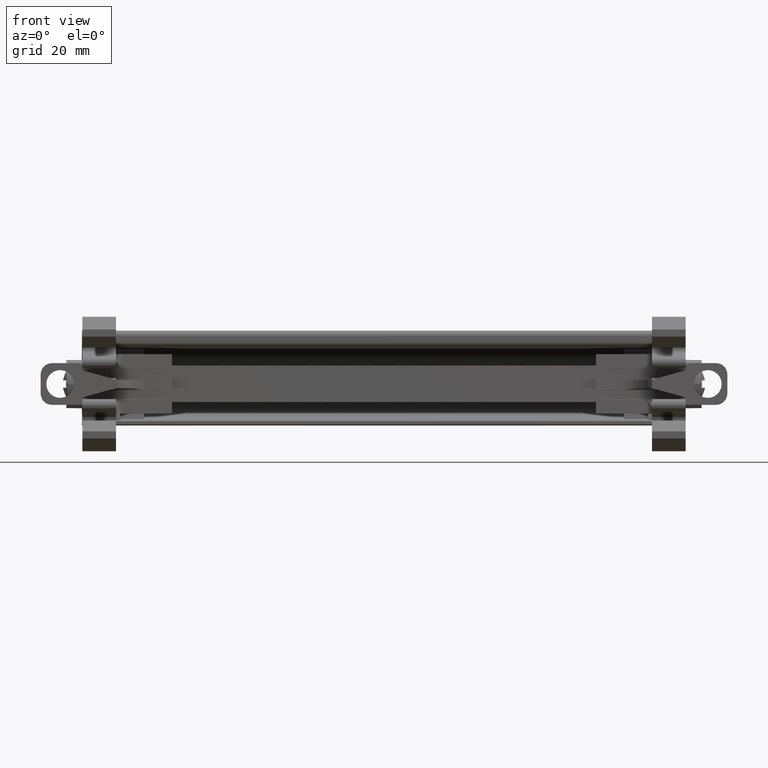
[diagram: clean part render]
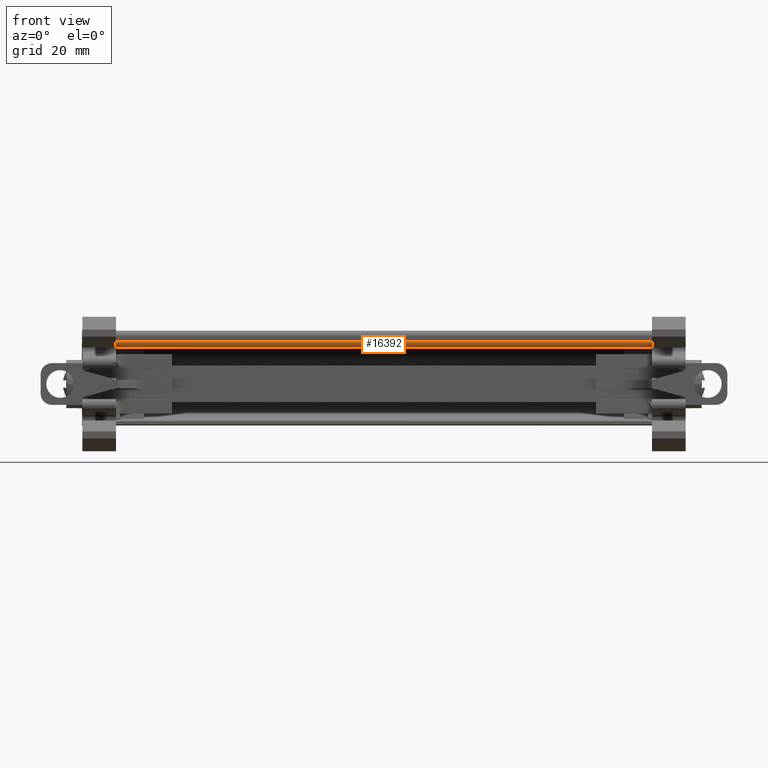
[diagram: same view with one face highlighted and labeled with its STEP entity id]
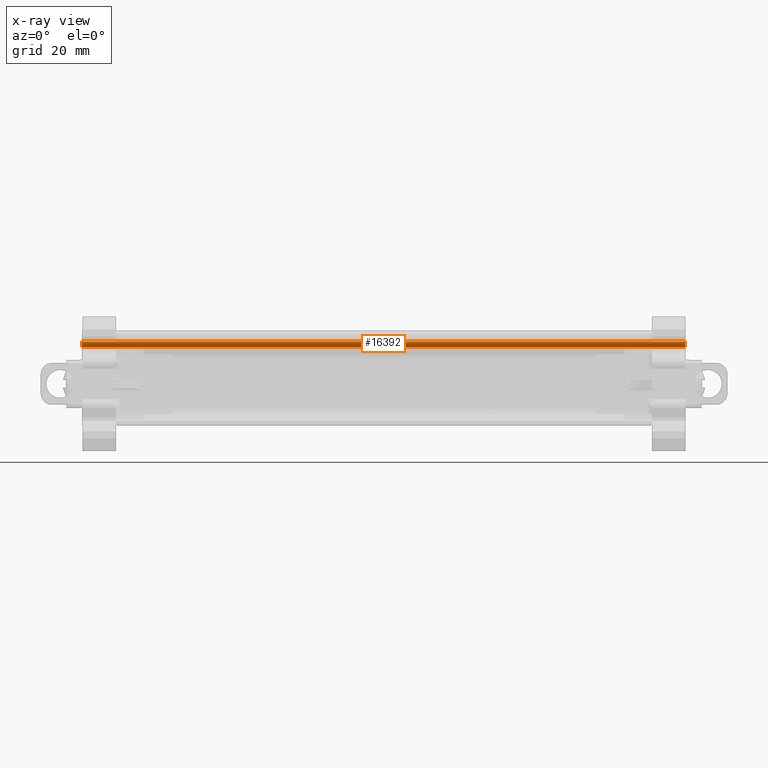
[diagram: x-ray of the same camera — body ghosted, the highlighted face saturated]
A machine part, front view. The second image highlights one B-rep face of the part: STEP entity #16392.
The next image is the same camera in x-ray: the body ghosted, the highlighted face saturated — about 0% of this face is hidden behind the body in this view.
In plain terms, the highlighted cylindrical surface (edge-blend (fillet) strip) has radius 0.9996 mm, axis along (-1, -0, -0).
Its self-contained STEP definition (entity closure, byte-faithful):
#4693 = EDGE_LOOP ( 'NONE', ( #28806, #28859, #28796, #28749, #28770, #28816, #28829, #28786, #28738, #28742 ) ) ;
#11717 = EDGE_CURVE ( 'NONE', #29567, #29592, #16520, .T. ) ;
#11722 = EDGE_CURVE ( 'NONE', #29566, #29486, #16503, .T. ) ;
#11771 = EDGE_CURVE ( 'NONE', #29567, #29570, #16641, .T. ) ;
#11791 = EDGE_CURVE ( 'NONE', #29486, #29568, #12185, .T. ) ;
#11799 = EDGE_CURVE ( 'NONE', #29566, #29570, #16735, .T. ) ;
#11806 = EDGE_CURVE ( 'NONE', #29568, #29548, #14784, .T. ) ;
#11848 = EDGE_CURVE ( 'NONE', #29595, #29591, #17982, .T. ) ;
#11908 = EDGE_CURVE ( 'NONE', #29536, #29548, #12280, .T. ) ;
#11957 = EDGE_CURVE ( 'NONE', #29591, #29592, #17074, .T. ) ;
#11979 = EDGE_CURVE ( 'NONE', #29595, #29536, #17119, .T. ) ;
#12094 = VECTOR ( 'NONE', #16635, 1000.000000000000000 ) ;
#12123 = VECTOR ( 'NONE', #16453, 1000.000000000000000 ) ;
#12126 = VECTOR ( 'NONE', #16479, 1000.000000000000000 ) ;
#12161 = VECTOR ( 'NONE', #16744, 1000.000000000000000 ) ;
#12182 = VECTOR ( 'NONE', #17974, 1000.000000000000000 ) ;
#12185 = CIRCLE ( 'NONE', #12211, 0.9996212121125974700 ) ;
#12211 = AXIS2_PLACEMENT_3D ( 'NONE', #16779, #16781, #16730 ) ;
#12216 = VECTOR ( 'NONE', #15403, 1000.000000000000000 ) ;
#12239 = VECTOR ( 'NONE', #17140, 1000.000000000000000 ) ;
#12254 = AXIS2_PLACEMENT_3D ( 'NONE', #17055, #17059, #17033 ) ;
#12276 = VECTOR ( 'NONE', #17105, 1000.000000000000000 ) ;
#12280 = CIRCLE ( 'NONE', #12254, 0.9996212121125974700 ) ;
#14784 = LINE ( 'NONE', #15319, #12216 ) ;
#15319 = CARTESIAN_POINT ( 'NONE',  ( 1.746232293548332300, -44.98918772838376900, 103.5534993518093800 ) ) ;
#15403 = DIRECTION ( 'NONE',  ( -1.000000000000000000, -1.123605221867979900E-014, 1.149507329944757500E-014 ) ) ;
#16392 = ADVANCED_FACE ( 'NONE', ( #25475 ), #25438, .T. ) ;
#16439 = CARTESIAN_POINT ( 'NONE',  ( -83.35126770571265800, -44.00701231195216000, 102.5540303868506600 ) ) ;
#16452 = CARTESIAN_POINT ( 'NONE',  ( 23.40827774791292600, -44.00701231195135000, 102.5540303868498700 ) ) ;
#16453 = DIRECTION ( 'NONE',  ( 1.000000000000000000, 1.123605221867979900E-014, -1.149507329944757500E-014 ) ) ;
#16479 = DIRECTION ( 'NONE',  ( -1.000000000000000000, -1.123605221867979900E-014, 1.149507329944757500E-014 ) ) ;
#16503 = LINE ( 'NONE', #16452, #12123 ) ;
#16520 = LINE ( 'NONE', #16439, #12126 ) ;
#16635 = DIRECTION ( 'NONE',  ( 1.000000000000000000, 1.123605221867979900E-014, -1.149507329944757500E-014 ) ) ;
#16641 = LINE ( 'NONE', #16703, #12094 ) ;
#16703 = CARTESIAN_POINT ( 'NONE',  ( 1.016762596590701500, -44.00701231195162700, 102.5540303868499900 ) ) ;
#16723 = CARTESIAN_POINT ( 'NONE',  ( -83.35126770571265800, -44.00701231195216000, 102.5540303868506600 ) ) ;
#16730 = DIRECTION ( 'NONE',  ( -1.041228490326238200E-014, 1.000000000000000000, 0.0000000000000000000 ) ) ;
#16735 = LINE ( 'NONE', #16723, #12161 ) ;
#16744 = DIRECTION ( 'NONE',  ( -1.000000000000000000, -1.123605221867979900E-014, 1.149507329944757500E-014 ) ) ;
#16779 = CARTESIAN_POINT ( 'NONE',  ( 24.22822092972982900, -43.98956651627093400, 103.5534993518092600 ) ) ;
#16781 = DIRECTION ( 'NONE',  ( -1.000000000000000000, -1.123605221867985000E-014, 1.149507329944757500E-014 ) ) ;
#17033 = DIRECTION ( 'NONE',  ( -1.388304653768317800E-014, 1.000000000000000000, 0.0000000000000000000 ) ) ;
#17055 = CARTESIAN_POINT ( 'NONE',  ( -83.37151391783994800, -43.98956651627174400, 103.5534993518098200 ) ) ;
#17059 = DIRECTION ( 'NONE',  ( -1.000000000000000000, -1.123605221868004800E-014, -2.470852055925285700E-015 ) ) ;
#17074 = LINE ( 'NONE', #17085, #12276 ) ;
#17085 = CARTESIAN_POINT ( 'NONE',  ( -30.17141922132243400, -44.00701231195197500, 102.5540303868501000 ) ) ;
#17105 = DIRECTION ( 'NONE',  ( 1.000000000000000000, 1.123605221867979900E-014, -1.149507329944757500E-014 ) ) ;
#17111 = CARTESIAN_POINT ( 'NONE',  ( -83.02164649360055600, -44.00701231195217400, 102.5540303868504300 ) ) ;
#17119 = LINE ( 'NONE', #17111, #12239 ) ;
#17140 = DIRECTION ( 'NONE',  ( -1.000000000000000000, -1.123605221868004800E-014, -2.470852055925285700E-015 ) ) ;
#17956 = CARTESIAN_POINT ( 'NONE',  ( 24.40789896002515000, -44.00701231195268500, 102.5540303868501000 ) ) ;
#17974 = DIRECTION ( 'NONE',  ( 1.000000000000000000, 1.123605221868004800E-014, 2.470852055925285700E-015 ) ) ;
#17982 = LINE ( 'NONE', #17956, #12182 ) ;
#23627 = AXIS2_PLACEMENT_3D ( 'NONE', #25445, #25465, #25439 ) ;
#25438 = CYLINDRICAL_SURFACE ( 'NONE', #23627, 0.9996212121125974700 ) ;
#25439 = DIRECTION ( 'NONE',  ( 1.041228490326238200E-014, -1.000000000000000000, 0.0000000000000000000 ) ) ;
#25445 = CARTESIAN_POINT ( 'NONE',  ( 23.73789896002514900, -43.98956651627049300, 103.5534993518102700 ) ) ;
#25465 = DIRECTION ( 'NONE',  ( -1.000000000000000000, -1.123605221868004800E-014, -2.470852055925285700E-015 ) ) ;
#25475 = FACE_OUTER_BOUND ( 'NONE', #4693, .T. ) ;
#28738 = ORIENTED_EDGE ( 'NONE', *, *, #11806, .T. ) ;
#28742 = ORIENTED_EDGE ( 'NONE', *, *, #11908, .F. ) ;
#28749 = ORIENTED_EDGE ( 'NONE', *, *, #11717, .F. ) ;
#28770 = ORIENTED_EDGE ( 'NONE', *, *, #11771, .T. ) ;
#28786 = ORIENTED_EDGE ( 'NONE', *, *, #11791, .T. ) ;
#28796 = ORIENTED_EDGE ( 'NONE', *, *, #11957, .T. ) ;
#28806 = ORIENTED_EDGE ( 'NONE', *, *, #11979, .F. ) ;
#28816 = ORIENTED_EDGE ( 'NONE', *, *, #11799, .F. ) ;
#28829 = ORIENTED_EDGE ( 'NONE', *, *, #11722, .T. ) ;
#28859 = ORIENTED_EDGE ( 'NONE', *, *, #11848, .T. ) ;
#29486 = VERTEX_POINT ( 'NONE', #30365 ) ;
#29536 = VERTEX_POINT ( 'NONE', #30442 ) ;
#29548 = VERTEX_POINT ( 'NONE', #30443 ) ;
#29566 = VERTEX_POINT ( 'NONE', #30408 ) ;
#29567 = VERTEX_POINT ( 'NONE', #30407 ) ;
#29568 = VERTEX_POINT ( 'NONE', #30409 ) ;
#29570 = VERTEX_POINT ( 'NONE', #30410 ) ;
#29591 = VERTEX_POINT ( 'NONE', #30430 ) ;
#29592 = VERTEX_POINT ( 'NONE', #30426 ) ;
#29595 = VERTEX_POINT ( 'NONE', #30431 ) ;
#30365 = CARTESIAN_POINT ( 'NONE',  ( 24.22822092972982200, -44.00701231195135000, 102.5540303868498700 ) ) ;
#30407 = CARTESIAN_POINT ( 'NONE',  ( -13.12787755480260000, -44.00701231195250100, 102.5540303868497600 ) ) ;
#30408 = CARTESIAN_POINT ( 'NONE',  ( 2.466213354153815800, -44.00701231195258600, 102.5540303868495500 ) ) ;
#30409 = CARTESIAN_POINT ( 'NONE',  ( 24.22822092972982200, -44.98918772838353400, 103.5534993518092600 ) ) ;
#30410 = CARTESIAN_POINT ( 'NONE',  ( 0.7668572935623403400, -44.00701231195257200, 102.5540303868495500 ) ) ;
#30426 = CARTESIAN_POINT ( 'NONE',  ( -14.82723361539403200, -44.00701231195248700, 102.5540303868497600 ) ) ;
#30430 = CARTESIAN_POINT ( 'NONE',  ( -44.31605937271612600, -44.00701231195175500, 102.5540303868502100 ) ) ;
#30431 = CARTESIAN_POINT ( 'NONE',  ( -46.01541543330751700, -44.00701231195235200, 102.5540303868501000 ) ) ;
#30442 = CARTESIAN_POINT ( 'NONE',  ( -83.37151391783994800, -44.00701231195216000, 102.5540303868504300 ) ) ;
#30443 = CARTESIAN_POINT ( 'NONE',  ( -83.37151391783994800, -44.98918772838429400, 103.5534993518098200 ) ) ;